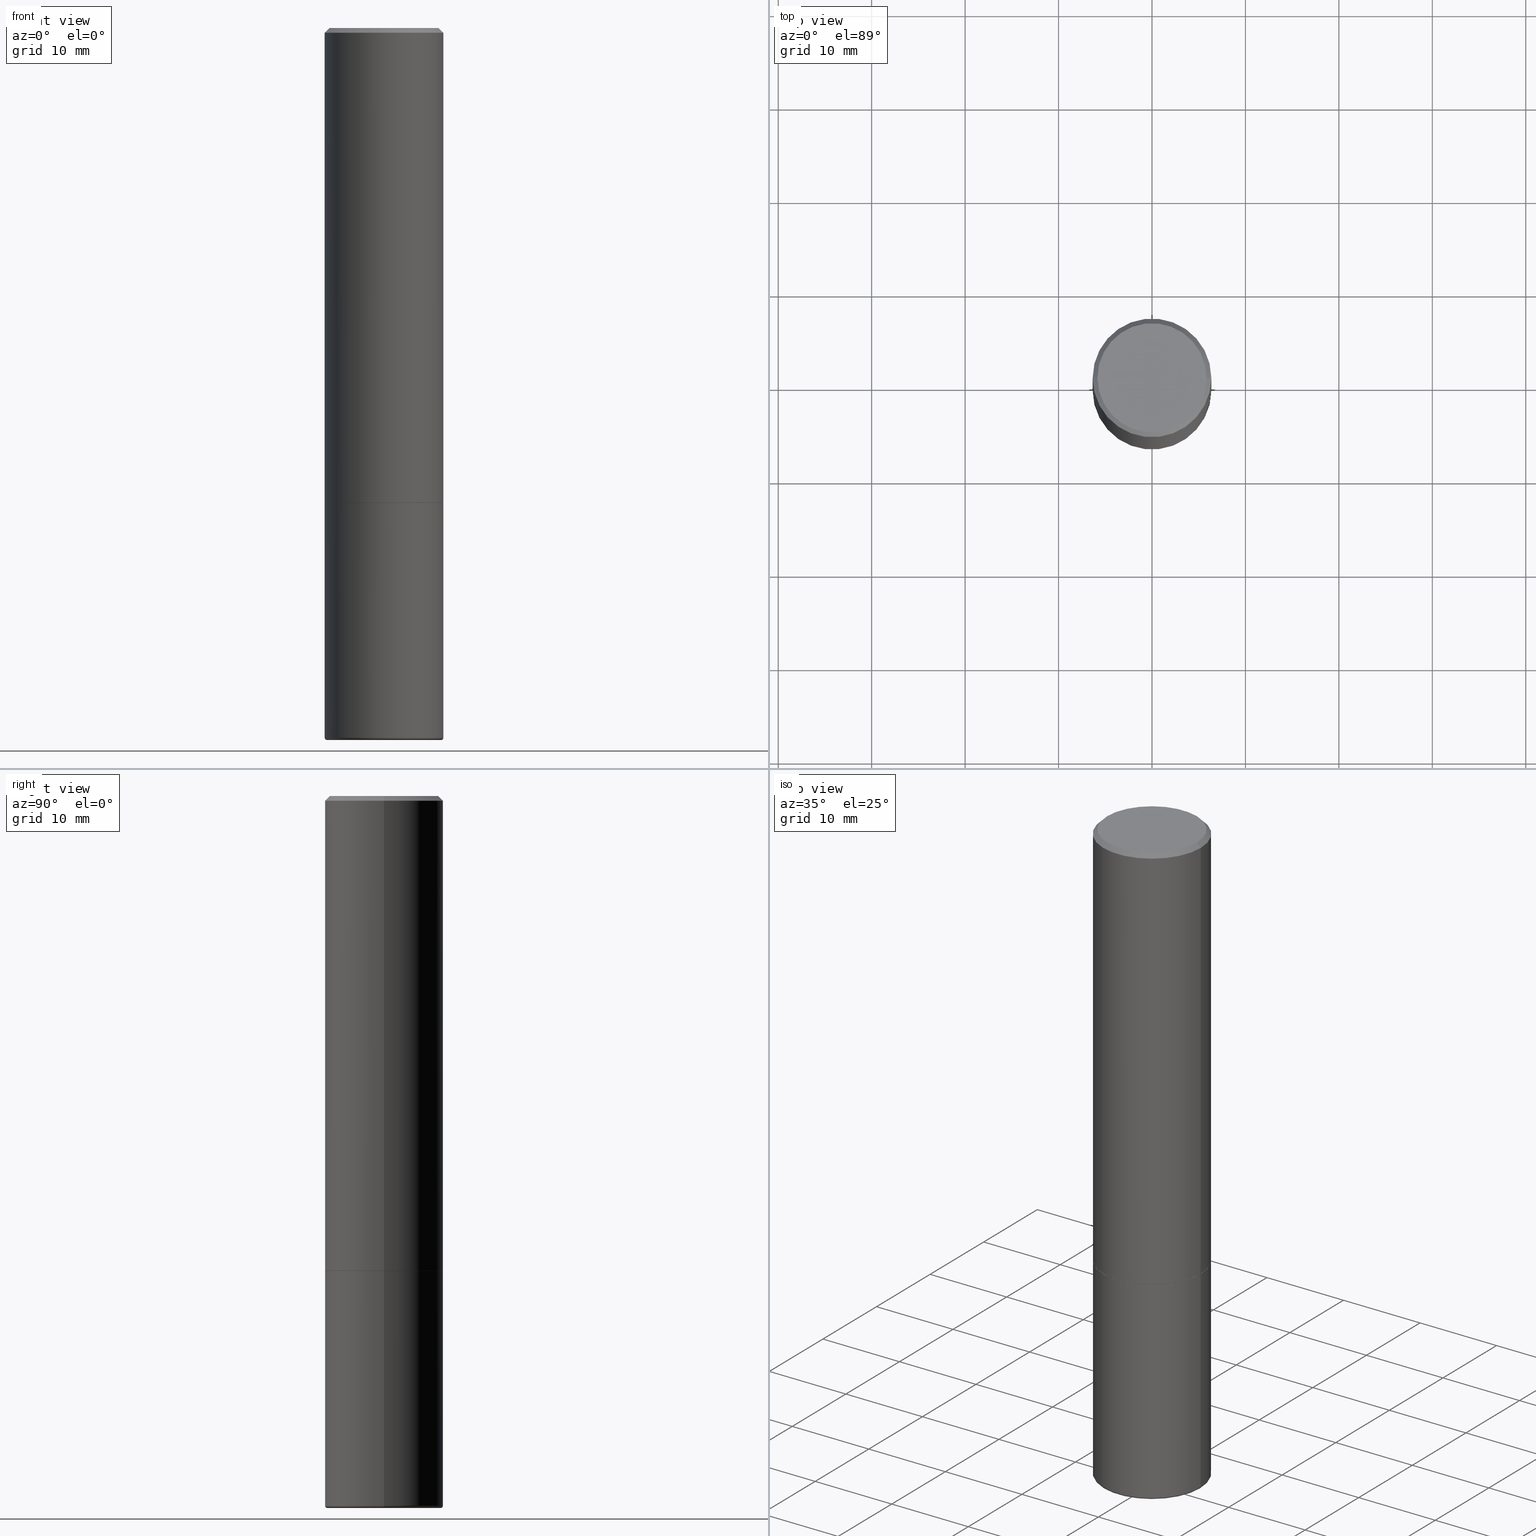
[diagram: canonical four-view strip — front | top / right | iso, engineering-drawing reading convention]
A machine part, canonical four-view strip (front | top / right | iso — engineering-drawing reading convention). The complete STEP part file that produces these views, byte-faithful:
ISO-10303-21;
HEADER;
FILE_DESCRIPTION (( 'STEP AP203' ),
    '1' );
FILE_NAME ('38832.STEP',
    '2024-03-03T15:42:06',
    ( '' ),
    ( '' ),
    'SwSTEP 2.0',
    'SolidWorks 2023',
    '' );
FILE_SCHEMA (( 'CONFIG_CONTROL_DESIGN' ));
ENDSEC;

DATA;
#1 = CC_DESIGN_SECURITY_CLASSIFICATION ( #21, ( #364 ) ) ;
#2 = PERSON_AND_ORGANIZATION_ROLE ( 'design_supplier' ) ;
#3 = ADVANCED_FACE ( 'NONE', ( #279 ), #108, .T. ) ;
#4 = DIRECTION ( 'NONE',  ( -2.445468806185136597E-29, 3.491481338843145583E-15, 1.000000000000000000 ) ) ;
#5 = AXIS2_PLACEMENT_3D ( 'NONE', #407, #240, #339 ) ;
#6 = DIRECTION ( 'NONE',  ( -1.000000000000000000, 7.105427357600978193E-15, 0.000000000000000000 ) ) ;
#7 = VERTEX_POINT ( 'NONE', #384 ) ;
#8 = EDGE_CURVE ( 'NONE', #309, #99, #255, .T. ) ;
#9 = PRODUCT_DEFINITION_SHAPE ( 'NONE', 'NONE',  #19 ) ;
#10 = ORIENTED_EDGE ( 'NONE', *, *, #8, .F. ) ;
#11 = CARTESIAN_POINT ( 'NONE',  ( 7.311951730493558245E-29, -1.043952920314100628E-14, -2.990000000000000213 ) ) ;
#12 = EDGE_LOOP ( 'NONE', ( #334, #292, #47, #294 ) ) ;
#13 = FACE_OUTER_BOUND ( 'NONE', #338, .T. ) ;
#14 = CARTESIAN_POINT ( 'NONE',  ( 4.890937612370287172E-31, -6.982962677686310098E-17, -0.02000000000000005593 ) ) ;
#15 = CARTESIAN_POINT ( 'NONE',  ( 0.000000000000000000, 0.000000000000000000, 0.000000000000000000 ) ) ;
#16 = EDGE_LOOP ( 'NONE', ( #174, #130, #345, #147 ) ) ;
#17 = CARTESIAN_POINT ( 'NONE',  ( 0.2499999999999998890, -1.218526987256257138E-14, -2.990000000000000213 ) ) ;
#18 = FACE_OUTER_BOUND ( 'NONE', #416, .T. ) ;
#19 = PRODUCT_DEFINITION ( 'UNKNOWN', '', #364, #282 ) ;
#20 = CARTESIAN_POINT ( 'NONE',  ( -1.148236555768741665E-45, 1.639377487418492057E-31, 4.695363739110452099E-17 ) ) ;
#21 = SECURITY_CLASSIFICATION ( '', '', #275 ) ;
#22 = LENGTH_MEASURE_WITH_UNIT ( LENGTH_MEASURE( 0.02539999999999999897 ), #269 );
#23 =( NAMED_UNIT ( * ) SI_UNIT ( $, .STERADIAN. ) SOLID_ANGLE_UNIT ( ) );
#24 = EDGE_CURVE ( 'NONE', #305, #231, #298, .T. ) ;
#25 = CARTESIAN_POINT ( 'NONE',  ( 0.2489999999999999991, -8.721720384430172617E-15, -2.000000000000000444 ) ) ;
#26 = ORIENTED_EDGE ( 'NONE', *, *, #357, .T. ) ;
#27 = ORIENTED_EDGE ( 'NONE', *, *, #408, .T. ) ;
#28 = ORGANIZATION ( 'UNSPECIFIED', 'UNSPECIFIED', '' ) ;
#29 = MANIFOLD_SOLID_BREP ( 'Body-Move/Copy2[2]', #319 ) ;
#30 = PERSON_AND_ORGANIZATION ( #43, #28 ) ;
#31 = ADVANCED_FACE ( 'NONE', ( #121 ), #80, .T. ) ;
#32 = PERSON_AND_ORGANIZATION ( #43, #28 ) ;
#33 = CARTESIAN_POINT ( 'NONE',  ( 0.000000000000000000, 0.000000000000000000, 0.000000000000000000 ) ) ;
#34 = EDGE_CURVE ( 'NONE', #206, #373, #133, .T. ) ;
#35 = DIRECTION ( 'NONE',  ( -0.7071067811865467956, 2.468850131082249172E-15, -0.7071067811865482389 ) ) ;
#36 = EDGE_CURVE ( 'NONE', #55, #373, #278, .T. ) ;
#37 = ORIENTED_EDGE ( 'NONE', *, *, #286, .T. ) ;
#38 = AXIS2_PLACEMENT_3D ( 'NONE', #15, #136, #52 ) ;
#39 = AXIS2_PLACEMENT_3D ( 'NONE', #308, #209, #180 ) ;
#40 = DIRECTION ( 'NONE',  ( -2.445468806185136597E-29, 3.491481338843145583E-15, 1.000000000000000000 ) ) ;
#41 = ADVANCED_FACE ( 'NONE', ( #18 ), #289, .T. ) ;
#42 = CARTESIAN_POINT ( 'NONE',  ( -0.2500000000000000000, 1.675911042644703577E-15, -0.02000000000000005593 ) ) ;
#43 = PERSON ( 'UNSPECIFIED', 'UNSPECIFIED', 'UNSPECIFIED', ('UNSPECIFIED'), ('UNSPECIFIED'), ('UNSPECIFIED') ) ;
#44 = ORIENTED_EDGE ( 'NONE', *, *, #286, .F. ) ;
#45 = CC_DESIGN_DATE_AND_TIME_ASSIGNMENT ( #221, #354, ( #19 ) ) ;
#46 = DIRECTION ( 'NONE',  ( -2.445468806185136597E-29, 3.491481338843145583E-15, 1.000000000000000000 ) ) ;
#47 = ORIENTED_EDGE ( 'NONE', *, *, #277, .F. ) ;
#48 = ADVANCED_FACE ( 'NONE', ( #271 ), #378, .F. ) ;
#49 = CARTESIAN_POINT ( 'NONE',  ( -0.2500000000000002220, -1.748293572161901516E-15, -1.999000000000000110 ) ) ;
#50 = DIRECTION ( 'NONE',  ( -2.445468806185136597E-29, 3.491481338843145583E-15, 1.000000000000000000 ) ) ;
#51 = ADVANCED_FACE ( 'NONE', ( #58 ), #181, .T. ) ;
#52 = DIRECTION ( 'NONE',  ( 1.000000000000000000, -6.982962677686267499E-15, 4.876176775795936353E-29 ) ) ;
#53 = ORIENTED_EDGE ( 'NONE', *, *, #218, .F. ) ;
#54 = DIRECTION ( 'NONE',  ( -2.445468806185136597E-29, 3.491481338843145583E-15, 1.000000000000000000 ) ) ;
#55 = VERTEX_POINT ( 'NONE', #155 ) ;
#56 = VECTOR ( 'NONE', #35, 39.37007874015748143 ) ;
#57 = ORIENTED_EDGE ( 'NONE', *, *, #137, .F. ) ;
#58 = FACE_OUTER_BOUND ( 'NONE', #243, .T. ) ;
#59 = ORIENTED_EDGE ( 'NONE', *, *, #36, .T. ) ;
#60 = DIRECTION ( 'NONE',  ( -2.445468806185136597E-29, 3.491481338843145583E-15, 1.000000000000000000 ) ) ;
#61 = DIRECTION ( 'NONE',  ( 1.000000000000000000, -6.982962677686267499E-15, 4.876176775795936353E-29 ) ) ;
#62 = VECTOR ( 'NONE', #86, 39.37007874015748143 ) ;
#63 = CALENDAR_DATE ( 2024, 3, 3 ) ;
#64 = DATE_AND_TIME ( #148, #256 ) ;
#65 = VECTOR ( 'NONE', #350, 39.37007874015748143 ) ;
#66 = DIRECTION ( 'NONE',  ( -2.445468806185136597E-29, 3.491481338843145583E-15, 1.000000000000000000 ) ) ;
#67 = ORIENTED_EDGE ( 'NONE', *, *, #353, .T. ) ;
#68 = CARTESIAN_POINT ( 'NONE',  ( 4.890937612370273754E-29, -6.982962677686291954E-15, -2.000000000000000444 ) ) ;
#69 = DIRECTION ( 'NONE',  ( -2.445468806185136597E-29, 3.491481338843145583E-15, 1.000000000000000000 ) ) ;
#70 = ORIENTED_EDGE ( 'NONE', *, *, #73, .T. ) ;
#71 = AXIS2_PLACEMENT_3D ( 'NONE', #250, #318, #392 ) ;
#72 = LINE ( 'NONE', #297, #263 ) ;
#73 = EDGE_CURVE ( 'NONE', #309, #115, #285, .T. ) ;
#74 = FACE_OUTER_BOUND ( 'NONE', #182, .T. ) ;
#75 = DIRECTION ( 'NONE',  ( 1.000000000000000000, -6.982962677686266711E-15, 0.000000000000000000 ) ) ;
#76 = ORIENTED_EDGE ( 'NONE', *, *, #146, .F. ) ;
#77 = CIRCLE ( 'NONE', #327, 0.009999999999999790307 ) ;
#78 = CARTESIAN_POINT ( 'NONE',  ( 7.336406418555408669E-29, -1.047444401652943478E-14, -2.999999999999999556 ) ) ;
#79 = CARTESIAN_POINT ( 'NONE',  ( 4.890937612370287172E-31, -6.982962677686310098E-17, -0.02000000000000005593 ) ) ;
#80 = CYLINDRICAL_SURFACE ( 'NONE', #316, 0.2500000000000000000 ) ;
#81 = ADVANCED_FACE ( 'NONE', ( #126 ), #272, .T. ) ;
#82 = EDGE_LOOP ( 'NONE', ( #106, #26, #329, #169 ) ) ;
#83 = CIRCLE ( 'NONE', #380, 0.2500000000000000000 ) ;
#84 = PERSON_AND_ORGANIZATION_ROLE ( 'classification_officer' ) ;
#85 = ADVANCED_BREP_SHAPE_REPRESENTATION ( '38832', ( #291, #29, #382 ), #230 ) ;
#86 = DIRECTION ( 'NONE',  ( 0.7071067811865467956, -7.319954787623254468E-15, -0.7071067811865482389 ) ) ;
#87 = CARTESIAN_POINT ( 'NONE',  ( 4.890937612370273754E-29, -6.982962677686291954E-15, -2.000000000000000444 ) ) ;
#88 = APPROVAL_ROLE ( '' ) ;
#89 = CARTESIAN_POINT ( 'NONE',  ( 0.000000000000000000, 0.000000000000000000, 0.000000000000000000 ) ) ;
#90 = AXIS2_PLACEMENT_3D ( 'NONE', #68, #46, #195 ) ;
#91 = CIRCLE ( 'NONE', #71, 0.2500000000000000000 ) ;
#92 = APPROVAL_ROLE ( '' ) ;
#93 = APPLICATION_PROTOCOL_DEFINITION ( 'international standard', 'config_control_design', 1994, #312 ) ;
#94 = CARTESIAN_POINT ( 'NONE',  ( 7.311951730493558245E-29, -1.043952920314100628E-14, -2.990000000000000213 ) ) ;
#95 = VECTOR ( 'NONE', #97, 39.37007874015748143 ) ;
#96 = CARTESIAN_POINT ( 'NONE',  ( -1.148236555768741665E-45, 1.639377487418492057E-31, 4.695363739110452099E-17 ) ) ;
#97 = DIRECTION ( 'NONE',  ( -2.445468806185136877E-29, 3.491481338843145188E-15, 1.000000000000000000 ) ) ;
#98 = CARTESIAN_POINT ( 'NONE',  ( -0.2500000000000000000, 1.675911042644703577E-15, -0.02000000000000005593 ) ) ;
#99 = VERTEX_POINT ( 'NONE', #393 ) ;
#100 = CIRCLE ( 'NONE', #164, 0.2500000000000002220 ) ;
#101 = CARTESIAN_POINT ( 'NONE',  ( 4.890937612370287172E-31, -6.982962677686310098E-17, -0.02000000000000005593 ) ) ;
#102 = ORIENTED_EDGE ( 'NONE', *, *, #146, .T. ) ;
#103 = DIRECTION ( 'NONE',  ( -2.445468806185136597E-29, 3.491481338843145583E-15, 1.000000000000000000 ) ) ;
#104 = VERTEX_POINT ( 'NONE', #260 ) ;
#105 = DIRECTION ( 'NONE',  ( -1.000000000000000000, 6.982962677686265922E-15, -4.876176775795935793E-29 ) ) ;
#106 = ORIENTED_EDGE ( 'NONE', *, *, #228, .F. ) ;
#107 = ADVANCED_FACE ( 'NONE', ( #132 ), #244, .T. ) ;
#108 = CONICAL_SURFACE ( 'NONE', #175, 0.2500000000000000000, 0.7853981633974472798 ) ;
#109 = PLANE ( 'NONE',  #307 ) ;
#110 = AXIS2_PLACEMENT_3D ( 'NONE', #20, #141, #116 ) ;
#111 = FACE_OUTER_BOUND ( 'NONE', #196, .T. ) ;
#112 = DIRECTION ( 'NONE',  ( -1.000000000000000000, 6.982962677686266711E-15, 0.000000000000000000 ) ) ;
#113 = DIRECTION ( 'NONE',  ( -2.445468806185136597E-29, 3.491481338843145583E-15, 1.000000000000000000 ) ) ;
#114 = EDGE_CURVE ( 'NONE', #231, #248, #131, .T. ) ;
#115 = VERTEX_POINT ( 'NONE', #170 ) ;
#116 = DIRECTION ( 'NONE',  ( 1.000000000000000000, -6.982962677686267499E-15, 4.875813741439101456E-29 ) ) ;
#117 = AXIS2_PLACEMENT_3D ( 'NONE', #341, #50, #311 ) ;
#118 = EDGE_CURVE ( 'NONE', #115, #373, #72, .T. ) ;
#119 = DIRECTION ( 'NONE',  ( -1.000000000000000000, 6.982962677686266711E-15, 0.000000000000000000 ) ) ;
#120 = COORDINATED_UNIVERSAL_TIME_OFFSET ( 5, 0, .BEHIND. ) ;
#121 = FACE_OUTER_BOUND ( 'NONE', #331, .T. ) ;
#122 = CC_DESIGN_PERSON_AND_ORGANIZATION_ASSIGNMENT ( #154, #2, ( #364 ) ) ;
#123 = APPROVAL_DATE_TIME ( #64, #247 ) ;
#124 = AXIS2_PLACEMENT_3D ( 'NONE', #287, #4, #326 ) ;
#125 = VECTOR ( 'NONE', #314, 39.37007874015748143 ) ;
#126 = FACE_OUTER_BOUND ( 'NONE', #82, .T. ) ;
#127 = AXIS2_PLACEMENT_3D ( 'NONE', #87, #216, #347 ) ;
#128 = COORDINATED_UNIVERSAL_TIME_OFFSET ( 5, 0, .BEHIND. ) ;
#129 = CARTESIAN_POINT ( 'NONE',  ( -0.2499999999999998890, -8.663172363740755817E-15, -2.990000000000000213 ) ) ;
#130 = ORIENTED_EDGE ( 'NONE', *, *, #257, .T. ) ;
#131 = LINE ( 'NONE', #333, #95 ) ;
#132 = FACE_OUTER_BOUND ( 'NONE', #399, .T. ) ;
#133 = CIRCLE ( 'NONE', #185, 0.2500000000000000000 ) ;
#134 = DIRECTION ( 'NONE',  ( 1.000000000000000000, -6.982962677686269077E-15, 4.883557194083114022E-29 ) ) ;
#135 = FACE_OUTER_BOUND ( 'NONE', #325, .T. ) ;
#136 = DIRECTION ( 'NONE',  ( -2.445468806185136597E-29, 3.491481338843145583E-15, 1.000000000000000000 ) ) ;
#137 = EDGE_CURVE ( 'NONE', #7, #305, #77, .T. ) ;
#138 = ORIENTED_EDGE ( 'NONE', *, *, #322, .F. ) ;
#139 = DIRECTION ( 'NONE',  ( 1.000000000000000000, -6.982962677686268288E-15, 0.000000000000000000 ) ) ;
#140 = AXIS2_PLACEMENT_3D ( 'NONE', #96, #103, #330 ) ;
#141 = DIRECTION ( 'NONE',  ( -2.445468806185136597E-29, 3.491481338843145583E-15, 1.000000000000000000 ) ) ;
#142 = APPROVAL_PERSON_ORGANIZATION ( #217, #247, #92 ) ;
#143 = ORIENTED_EDGE ( 'NONE', *, *, #187, .F. ) ;
#144 = CYLINDRICAL_SURFACE ( 'NONE', #238, 0.2500000000000000000 ) ;
#145 = CARTESIAN_POINT ( 'NONE',  ( 4.888492143564088712E-29, -6.979471196347448158E-15, -1.999000000000000110 ) ) ;
#146 = EDGE_CURVE ( 'NONE', #55, #370, #172, .T. ) ;
#147 = ORIENTED_EDGE ( 'NONE', *, *, #34, .F. ) ;
#148 = CALENDAR_DATE ( 2024, 3, 3 ) ;
#149 = AXIS2_PLACEMENT_3D ( 'NONE', #288, #202, #6 ) ;
#150 = CIRCLE ( 'NONE', #110, 0.2299999999999999267 ) ;
#151 = CARTESIAN_POINT ( 'NONE',  ( 0.2489999999999999991, -8.721720384430172617E-15, -2.000000000000000444 ) ) ;
#152 = EDGE_CURVE ( 'NONE', #370, #206, #262, .T. ) ;
#153 = ADVANCED_FACE ( 'NONE', ( #13 ), #254, .F. ) ;
#154 = PERSON_AND_ORGANIZATION ( #43, #28 ) ;
#155 = CARTESIAN_POINT ( 'NONE',  ( 0.2299999999999999267, -1.681434332853598617E-15, 4.695363739111602110E-17 ) ) ;
#156 = AXIS2_PLACEMENT_3D ( 'NONE', #369, #193, #398 ) ;
#157 = CC_DESIGN_APPROVAL ( #247, ( #19 ) ) ;
#158 = PRODUCT_RELATED_PRODUCT_CATEGORY ( 'detail', '', ( #267 ) ) ;
#159 = DATE_AND_TIME ( #396, #212 ) ;
#160 = UNCERTAINTY_MEASURE_WITH_UNIT (LENGTH_MEASURE( 1.000000000000000082E-05 ), #348, 'distance_accuracy_value', 'NONE');
#161 = LINE ( 'NONE', #401, #211 ) ;
#162 = DIRECTION ( 'NONE',  ( 1.000000000000000000, -6.982962677686269077E-15, 4.883557194083114022E-29 ) ) ;
#163 = AXIS2_PLACEMENT_3D ( 'NONE', #79, #208, #112 ) ;
#164 = AXIS2_PLACEMENT_3D ( 'NONE', #397, #40, #165 ) ;
#165 = DIRECTION ( 'NONE',  ( 1.000000000000000000, -6.982962677686268288E-15, 0.000000000000000000 ) ) ;
#166 = DIRECTION ( 'NONE',  ( 1.000000000000000000, -6.982962677686266711E-15, 0.000000000000000000 ) ) ;
#167 = VERTEX_POINT ( 'NONE', #198 ) ;
#168 = DIRECTION ( 'NONE',  ( 1.000000000000000000, -6.982962677686266711E-15, 0.000000000000000000 ) ) ;
#169 = ORIENTED_EDGE ( 'NONE', *, *, #408, .F. ) ;
#170 = CARTESIAN_POINT ( 'NONE',  ( 0.2500000000000002220, -8.725211865769017202E-15, -1.999000000000000110 ) ) ;
#171 = ORIENTED_EDGE ( 'NONE', *, *, #367, .T. ) ;
#172 = CIRCLE ( 'NONE', #140, 0.2299999999999999267 ) ;
#173 = CC_DESIGN_PERSON_AND_ORGANIZATION_ASSIGNMENT ( #32, #415, ( #364 ) ) ;
#174 = ORIENTED_EDGE ( 'NONE', *, *, #390, .F. ) ;
#175 = AXIS2_PLACEMENT_3D ( 'NONE', #381, #413, #119 ) ;
#176 = CC_DESIGN_APPROVAL ( #214, ( #21 ) ) ;
#177 = PLANE ( 'NONE',  #5 ) ;
#178 = LOCAL_TIME ( 10, 42, 6.000000000000000000, #120 ) ;
#179 = ORIENTED_EDGE ( 'NONE', *, *, #322, .T. ) ;
#180 = DIRECTION ( 'NONE',  ( 1.000000000000000000, -6.982962677686266711E-15, 0.000000000000000000 ) ) ;
#181 = CYLINDRICAL_SURFACE ( 'NONE', #38, 0.2500000000000001110 ) ;
#182 = EDGE_LOOP ( 'NONE', ( #203, #340, #302, #57 ) ) ;
#183 = CYLINDRICAL_SURFACE ( 'NONE', #352, 0.2500000000000001110 ) ;
#184 = CARTESIAN_POINT ( 'NONE',  ( 7.311951730493558245E-29, -1.043952920314100628E-14, -2.990000000000000213 ) ) ;
#185 = AXIS2_PLACEMENT_3D ( 'NONE', #14, #69, #166 ) ;
#186 = LOCAL_TIME ( 10, 42, 6.000000000000000000, #188 ) ;
#187 = EDGE_CURVE ( 'NONE', #7, #167, #361, .T. ) ;
#188 = COORDINATED_UNIVERSAL_TIME_OFFSET ( 5, 0, .BEHIND. ) ;
#189 = LINE ( 'NONE', #418, #125 ) ;
#190 = CALENDAR_DATE ( 2024, 3, 3 ) ;
#191 = AXIS2_PLACEMENT_3D ( 'NONE', #232, #359, #235 ) ;
#192 = PERSON_AND_ORGANIZATION ( #43, #28 ) ;
#193 = DIRECTION ( 'NONE',  ( -2.445468806185136597E-29, 3.491481338843145583E-15, 1.000000000000000000 ) ) ;
#194 = DIRECTION ( 'NONE',  ( 1.000000000000000000, -6.982962677686266711E-15, 4.876176775795935793E-29 ) ) ;
#195 = DIRECTION ( 'NONE',  ( 1.000000000000000000, -6.982962677686266711E-15, 0.000000000000000000 ) ) ;
#196 = EDGE_LOOP ( 'NONE', ( #171, #102 ) ) ;
#197 = APPROVAL_DATE_TIME ( #159, #214 ) ;
#198 = CARTESIAN_POINT ( 'NONE',  ( -0.2400000000000000466, -8.716156907222976683E-15, -2.999999999999999556 ) ) ;
#199 = ORIENTED_EDGE ( 'NONE', *, *, #357, .F. ) ;
#200 = CC_DESIGN_APPROVAL ( #376, ( #364 ) ) ;
#201 = DATE_TIME_ROLE ( 'classification_date' ) ;
#202 = DIRECTION ( 'NONE',  ( 7.105427357601001859E-15, 1.000000000000000000, -3.491481338843145583E-15 ) ) ;
#203 = ORIENTED_EDGE ( 'NONE', *, *, #187, .T. ) ;
#204 = DIRECTION ( 'NONE',  ( -2.445468806185136597E-29, 3.491481338843145583E-15, 1.000000000000000000 ) ) ;
#205 = EDGE_CURVE ( 'NONE', #305, #104, #161, .T. ) ;
#206 = VERTEX_POINT ( 'NONE', #98 ) ;
#207 = CIRCLE ( 'NONE', #39, 0.2500000000000000000 ) ;
#208 = DIRECTION ( 'NONE',  ( 2.445468806185136597E-29, -3.491481338843145583E-15, -1.000000000000000000 ) ) ;
#209 = DIRECTION ( 'NONE',  ( -2.445468806185136597E-29, 3.491481338843145583E-15, 1.000000000000000000 ) ) ;
#210 = DIRECTION ( 'NONE',  ( -2.445468806185136597E-29, 3.491481338843145583E-15, 1.000000000000000000 ) ) ;
#211 = VECTOR ( 'NONE', #362, 39.37007874015748143 ) ;
#212 = LOCAL_TIME ( 10, 42, 6.000000000000000000, #128 ) ;
#213 = ORIENTED_EDGE ( 'NONE', *, *, #205, .T. ) ;
#214 = APPROVAL ( #321, 'UNSPECIFIED' ) ;
#215 = PERSON_AND_ORGANIZATION_ROLE ( 'design_owner' ) ;
#216 = DIRECTION ( 'NONE',  ( -2.445468806185136597E-29, 3.491481338843145583E-15, 1.000000000000000000 ) ) ;
#217 = PERSON_AND_ORGANIZATION ( #43, #28 ) ;
#218 = EDGE_CURVE ( 'NONE', #373, #206, #83, .T. ) ;
#219 = COORDINATED_UNIVERSAL_TIME_OFFSET ( 5, 0, .BEHIND. ) ;
#220 = ADVANCED_FACE ( 'NONE', ( #295 ), #306, .T. ) ;
#221 = DATE_AND_TIME ( #63, #299 ) ;
#222 = DIRECTION ( 'NONE',  ( -2.445468806185136597E-29, 3.491481338843145583E-15, 1.000000000000000000 ) ) ;
#223 = EDGE_CURVE ( 'NONE', #99, #342, #366, .T. ) ;
#224 = ADVANCED_FACE ( 'NONE', ( #74 ), #284, .T. ) ;
#225 = DIRECTION ( 'NONE',  ( 1.000000000000000000, -6.982962677686284854E-15, 0.000000000000000000 ) ) ;
#226 = APPROVAL_ROLE ( '' ) ;
#227 = DIRECTION ( 'NONE',  ( -2.445468806185136597E-29, 3.491481338843145583E-15, 1.000000000000000000 ) ) ;
#228 = EDGE_CURVE ( 'NONE', #167, #231, #336, .T. ) ;
#229 = AXIS2_PLACEMENT_3D ( 'NONE', #184, #60, #315 ) ;
#230 =( GEOMETRIC_REPRESENTATION_CONTEXT ( 3 ) GLOBAL_UNCERTAINTY_ASSIGNED_CONTEXT ( ( #160 ) ) GLOBAL_UNIT_ASSIGNED_CONTEXT ( ( #348, #283, #23 ) ) REPRESENTATION_CONTEXT ( 'NONE', 'WORKASPACE' ) );
#231 = VERTEX_POINT ( 'NONE', #129 ) ;
#232 = CARTESIAN_POINT ( 'NONE',  ( 4.890937612370273754E-29, -6.982962677686291954E-15, -2.000000000000000444 ) ) ;
#233 = CC_DESIGN_DATE_AND_TIME_ASSIGNMENT ( #386, #201, ( #21 ) ) ;
#234 = ORIENTED_EDGE ( 'NONE', *, *, #152, .T. ) ;
#235 = DIRECTION ( 'NONE',  ( 1.000000000000000000, -6.982962677686265922E-15, 4.876176775795935793E-29 ) ) ;
#236 = ORIENTED_EDGE ( 'NONE', *, *, #223, .F. ) ;
#237 = ORIENTED_EDGE ( 'NONE', *, *, #8, .T. ) ;
#238 = AXIS2_PLACEMENT_3D ( 'NONE', #335, #266, #270 ) ;
#239 = ORIENTED_EDGE ( 'NONE', *, *, #114, .F. ) ;
#240 = DIRECTION ( 'NONE',  ( 2.438088387897960049E-29, -3.491481338843145188E-15, -1.000000000000000000 ) ) ;
#241 = CARTESIAN_POINT ( 'NONE',  ( 4.890937612370273754E-29, -6.982962677686291954E-15, -2.000000000000000444 ) ) ;
#242 = ORIENTED_EDGE ( 'NONE', *, *, #73, .F. ) ;
#243 = EDGE_LOOP ( 'NONE', ( #179, #402, #53, #365 ) ) ;
#244 = CONICAL_SURFACE ( 'NONE', #90, 0.2489999999999999991, 0.7853981633975336552 ) ;
#245 = PERSON_AND_ORGANIZATION ( #43, #28 ) ;
#246 = DIRECTION ( 'NONE',  ( -1.000000000000000000, 6.982962677686265922E-15, -4.876176775795935793E-29 ) ) ;
#247 = APPROVAL ( #387, 'UNSPECIFIED' ) ;
#248 = VERTEX_POINT ( 'NONE', #258 ) ;
#249 = CALENDAR_DATE ( 2024, 3, 3 ) ;
#250 = CARTESIAN_POINT ( 'NONE',  ( 7.311951730493558245E-29, -1.043952920314100628E-14, -2.990000000000000213 ) ) ;
#251 = PERSON_AND_ORGANIZATION ( #43, #28 ) ;
#252 = AXIS2_PLACEMENT_3D ( 'NONE', #241, #344, #246 ) ;
#253 = SHAPE_DEFINITION_REPRESENTATION ( #9, #85 ) ;
#254 = PLANE ( 'NONE',  #191 ) ;
#255 = CIRCLE ( 'NONE', #127, 0.2489999999999999991 ) ;
#256 = LOCAL_TIME ( 10, 42, 6.000000000000000000, #219 ) ;
#257 = EDGE_CURVE ( 'NONE', #342, #115, #100, .T. ) ;
#258 = CARTESIAN_POINT ( 'NONE',  ( -0.2500000000000000000, -6.934889101013398653E-15, -2.000000000000000444 ) ) ;
#259 = ORIENTED_EDGE ( 'NONE', *, *, #152, .F. ) ;
#260 = CARTESIAN_POINT ( 'NONE',  ( 0.2500000000000000000, -8.728703347107858632E-15, -2.000000000000000444 ) ) ;
#261 = ORIENTED_EDGE ( 'NONE', *, *, #223, .T. ) ;
#262 = LINE ( 'NONE', #42, #56 ) ;
#263 = VECTOR ( 'NONE', #324, 39.37007874015748143 ) ;
#264 = DIRECTION ( 'NONE',  ( -6.982962677686266711E-15, -1.000000000000000000, 3.491481338843145583E-15 ) ) ;
#265 = ADVANCED_FACE ( 'NONE', ( #135 ), #177, .T. ) ;
#266 = DIRECTION ( 'NONE',  ( -2.445468806185136597E-29, 3.491481338843145583E-15, 1.000000000000000000 ) ) ;
#267 = PRODUCT ( '38832', '38832', '', ( #313 ) ) ;
#268 = ORIENTED_EDGE ( 'NONE', *, *, #353, .F. ) ;
#269 =( LENGTH_UNIT ( ) NAMED_UNIT ( * ) SI_UNIT ( $, .METRE. ) );
#270 = DIRECTION ( 'NONE',  ( 1.000000000000000000, -6.982962677686266711E-15, 4.876176775795935793E-29 ) ) ;
#271 = FACE_OUTER_BOUND ( 'NONE', #360, .T. ) ;
#272 = TOROIDAL_SURFACE ( 'NONE', #372, 0.2399999999999999911, 0.009999999999999807654 ) ;
#273 = CIRCLE ( 'NONE', #414, 0.2500000000000000000 ) ;
#274 = CARTESIAN_POINT ( 'NONE',  ( 0.2500000000000000000, -1.784954126219746189E-15, -0.02000000000000005593 ) ) ;
#275 = SECURITY_CLASSIFICATION_LEVEL ( 'unclassified' ) ;
#276 = DIRECTION ( 'NONE',  ( 2.438088387897960049E-29, -3.491481338843145188E-15, -1.000000000000000000 ) ) ;
#277 = EDGE_CURVE ( 'NONE', #104, #248, #207, .T. ) ;
#278 = LINE ( 'NONE', #274, #62 ) ;
#279 = FACE_OUTER_BOUND ( 'NONE', #281, .T. ) ;
#280 = PERSON_AND_ORGANIZATION_ROLE ( 'creator' ) ;
#281 = EDGE_LOOP ( 'NONE', ( #76, #59, #296, #259 ) ) ;
#282 = DESIGN_CONTEXT ( 'detailed design', #323, 'design' ) ;
#283 =( NAMED_UNIT ( * ) PLANE_ANGLE_UNIT ( ) SI_UNIT ( $, .RADIAN. ) );
#284 = TOROIDAL_SURFACE ( 'NONE', #412, 0.2399999999999999911, 0.009999999999999807654 ) ;
#285 = LINE ( 'NONE', #151, #65 ) ;
#286 = EDGE_CURVE ( 'NONE', #99, #309, #337, .T. ) ;
#287 = CARTESIAN_POINT ( 'NONE',  ( 4.890937612370273754E-29, -6.982962677686291954E-15, -2.000000000000000444 ) ) ;
#288 = CARTESIAN_POINT ( 'NONE',  ( -0.2399999999999999911, -8.734226637316765899E-15, -2.990000000000000213 ) ) ;
#289 = CONICAL_SURFACE ( 'NONE', #163, 0.2500000000000000000, 0.7853981633974472798 ) ;
#290 = AXIS2_PLACEMENT_3D ( 'NONE', #145, #113, #139 ) ;
#291 = MANIFOLD_SOLID_BREP ( 'Body-Move/Copy2[1]', #400 ) ;
#292 = ORIENTED_EDGE ( 'NONE', *, *, #114, .T. ) ;
#293 = DIRECTION ( 'NONE',  ( -0.7071067811866078578, 7.493145998870571886E-15, 0.7071067811864871766 ) ) ;
#294 = ORIENTED_EDGE ( 'NONE', *, *, #205, .F. ) ;
#295 = FACE_OUTER_BOUND ( 'NONE', #368, .T. ) ;
#296 = ORIENTED_EDGE ( 'NONE', *, *, #218, .T. ) ;
#297 = CARTESIAN_POINT ( 'NONE',  ( 0.2500000000000001110, -1.745740669421567664E-15, 1.219044193948984649E-29 ) ) ;
#298 = CIRCLE ( 'NONE', #229, 0.2500000000000000000 ) ;
#299 = LOCAL_TIME ( 10, 42, 6.000000000000000000, #351 ) ;
#300 = CARTESIAN_POINT ( 'NONE',  ( 1.606081415867840870E-15, 0.2299999999999999267, -7.795638892383710465E-16 ) ) ;
#301 = ORIENTED_EDGE ( 'NONE', *, *, #257, .F. ) ;
#302 = ORIENTED_EDGE ( 'NONE', *, *, #24, .F. ) ;
#303 = CARTESIAN_POINT ( 'NONE',  ( 4.890937612370273754E-29, -6.982962677686291954E-15, -2.000000000000000444 ) ) ;
#304 = VECTOR ( 'NONE', #293, 39.37007874015748143 ) ;
#305 = VERTEX_POINT ( 'NONE', #17 ) ;
#306 = CONICAL_SURFACE ( 'NONE', #124, 0.2489999999999999991, 0.7853981633975336552 ) ;
#307 = AXIS2_PLACEMENT_3D ( 'NONE', #300, #276, #105 ) ;
#308 = CARTESIAN_POINT ( 'NONE',  ( 4.890937612370273754E-29, -6.982962677686291954E-15, -2.000000000000000444 ) ) ;
#309 = VERTEX_POINT ( 'NONE', #25 ) ;
#310 = CC_DESIGN_PERSON_AND_ORGANIZATION_ASSIGNMENT ( #383, #84, ( #21 ) ) ;
#311 = DIRECTION ( 'NONE',  ( 1.000000000000000000, -6.982962677686266711E-15, 0.000000000000000000 ) ) ;
#312 = APPLICATION_CONTEXT ( 'configuration controlled 3d designs of mechanical parts and assemblies' ) ;
#313 = MECHANICAL_CONTEXT ( 'NONE', #312, 'mechanical' ) ;
#314 = DIRECTION ( 'NONE',  ( -2.445468806185136877E-29, 3.491481338843145188E-15, 1.000000000000000000 ) ) ;
#315 = DIRECTION ( 'NONE',  ( 1.000000000000000000, -6.982962677686262766E-15, 0.000000000000000000 ) ) ;
#316 = AXIS2_PLACEMENT_3D ( 'NONE', #394, #66, #194 ) ;
#317 = DATE_AND_TIME ( #190, #186 ) ;
#318 = DIRECTION ( 'NONE',  ( -2.445468806185136597E-29, 3.491481338843145583E-15, 1.000000000000000000 ) ) ;
#319 = CLOSED_SHELL ( 'NONE', ( #220, #51, #3, #41, #379, #107, #153, #332 ) ) ;
#320 = DIRECTION ( 'NONE',  ( -2.445468806185136597E-29, 3.491481338843145583E-15, 1.000000000000000000 ) ) ;
#321 = APPROVAL_STATUS ( 'not_yet_approved' ) ;
#322 = EDGE_CURVE ( 'NONE', #115, #342, #406, .T. ) ;
#323 = APPLICATION_CONTEXT ( 'configuration controlled 3d designs of mechanical parts and assemblies' ) ;
#324 = DIRECTION ( 'NONE',  ( -2.445468806185136877E-29, 3.491481338843145188E-15, 1.000000000000000000 ) ) ;
#325 = EDGE_LOOP ( 'NONE', ( #143, #199 ) ) ;
#326 = DIRECTION ( 'NONE',  ( 1.000000000000000000, -6.982962677686266711E-15, 0.000000000000000000 ) ) ;
#327 = AXIS2_PLACEMENT_3D ( 'NONE', #403, #264, #225 ) ;
#328 = ADVANCED_FACE ( 'NONE', ( #371 ), #144, .T. ) ;
#329 = ORIENTED_EDGE ( 'NONE', *, *, #137, .T. ) ;
#330 = DIRECTION ( 'NONE',  ( 1.000000000000000000, -6.982962677686267499E-15, 4.875813741439101456E-29 ) ) ;
#331 = EDGE_LOOP ( 'NONE', ( #239, #27, #213, #268 ) ) ;
#332 = ADVANCED_FACE ( 'NONE', ( #111 ), #109, .F. ) ;
#333 = CARTESIAN_POINT ( 'NONE',  ( -0.2500000000000000000, 1.776356839400250465E-15, -1.229733772563726445E-29 ) ) ;
#334 = ORIENTED_EDGE ( 'NONE', *, *, #24, .T. ) ;
#335 = CARTESIAN_POINT ( 'NONE',  ( 0.000000000000000000, 0.000000000000000000, 0.000000000000000000 ) ) ;
#336 = CIRCLE ( 'NONE', #149, 0.009999999999999790307 ) ;
#337 = CIRCLE ( 'NONE', #117, 0.2489999999999999991 ) ;
#338 = EDGE_LOOP ( 'NONE', ( #10, #44 ) ) ;
#339 = DIRECTION ( 'NONE',  ( -1.000000000000000000, 6.982962677686265922E-15, -4.876176775795935793E-29 ) ) ;
#340 = ORIENTED_EDGE ( 'NONE', *, *, #228, .T. ) ;
#341 = CARTESIAN_POINT ( 'NONE',  ( 4.890937612370273754E-29, -6.982962677686291954E-15, -2.000000000000000444 ) ) ;
#342 = VERTEX_POINT ( 'NONE', #49 ) ;
#343 = AXIS2_PLACEMENT_3D ( 'NONE', #78, #54, #410 ) ;
#344 = DIRECTION ( 'NONE',  ( 2.438088387897960049E-29, -3.491481338843145188E-15, -1.000000000000000000 ) ) ;
#345 = ORIENTED_EDGE ( 'NONE', *, *, #118, .T. ) ;
#346 = DIRECTION ( 'NONE',  ( 0.000000000000000000, 0.000000000000000000, 1.000000000000000000 ) ) ;
#347 = DIRECTION ( 'NONE',  ( 1.000000000000000000, -6.982962677686266711E-15, 0.000000000000000000 ) ) ;
#348 =( CONVERSION_BASED_UNIT ( 'INCH', #22 ) LENGTH_UNIT ( ) NAMED_UNIT ( #411 ) );
#349 = CC_DESIGN_PERSON_AND_ORGANIZATION_ASSIGNMENT ( #251, #280, ( #19 ) ) ;
#350 = DIRECTION ( 'NONE',  ( 0.7071067811866078578, -2.468850131082888544E-15, 0.7071067811864871766 ) ) ;
#351 = COORDINATED_UNIVERSAL_TIME_OFFSET ( 5, 0, .BEHIND. ) ;
#352 = AXIS2_PLACEMENT_3D ( 'NONE', #33, #320, #61 ) ;
#353 = EDGE_CURVE ( 'NONE', #248, #104, #273, .T. ) ;
#354 = DATE_TIME_ROLE ( 'creation_date' ) ;
#355 = APPROVAL_STATUS ( 'not_yet_approved' ) ;
#356 = FACE_OUTER_BOUND ( 'NONE', #16, .T. ) ;
#357 = EDGE_CURVE ( 'NONE', #167, #7, #358, .T. ) ;
#358 = CIRCLE ( 'NONE', #343, 0.2400000000000000466 ) ;
#359 = DIRECTION ( 'NONE',  ( -2.438088387897960049E-29, 3.491481338843145188E-15, 1.000000000000000000 ) ) ;
#360 = EDGE_LOOP ( 'NONE', ( #405, #67 ) ) ;
#361 = CIRCLE ( 'NONE', #156, 0.2400000000000000466 ) ;
#362 = DIRECTION ( 'NONE',  ( -2.445468806185136877E-29, 3.491481338843145188E-15, 1.000000000000000000 ) ) ;
#363 = APPROVAL_PERSON_ORGANIZATION ( #192, #214, #226 ) ;
#364 = PRODUCT_DEFINITION_FORMATION_WITH_SPECIFIED_SOURCE ( 'ANY', '', #267, .NOT_KNOWN. ) ;
#365 = ORIENTED_EDGE ( 'NONE', *, *, #118, .F. ) ;
#366 = LINE ( 'NONE', #395, #304 ) ;
#367 = EDGE_CURVE ( 'NONE', #370, #55, #150, .T. ) ;
#368 = EDGE_LOOP ( 'NONE', ( #237, #261, #138, #242 ) ) ;
#369 = CARTESIAN_POINT ( 'NONE',  ( 7.336406418555408669E-29, -1.047444401652943478E-14, -2.999999999999999556 ) ) ;
#370 = VERTEX_POINT ( 'NONE', #377 ) ;
#371 = FACE_OUTER_BOUND ( 'NONE', #12, .T. ) ;
#372 = AXIS2_PLACEMENT_3D ( 'NONE', #94, #222, #134 ) ;
#373 = VERTEX_POINT ( 'NONE', #375 ) ;
#374 = ORIENTED_EDGE ( 'NONE', *, *, #34, .T. ) ;
#375 = CARTESIAN_POINT ( 'NONE',  ( 0.2500000000000000000, -1.784954126219746189E-15, -0.02000000000000005593 ) ) ;
#376 = APPROVAL ( #355, 'UNSPECIFIED' ) ;
#377 = CARTESIAN_POINT ( 'NONE',  ( -0.2299999999999999267, 1.640996229256272519E-15, 4.695363739109317495E-17 ) ) ;
#378 = PLANE ( 'NONE',  #252 ) ;
#379 = ADVANCED_FACE ( 'NONE', ( #356 ), #183, .T. ) ;
#380 = AXIS2_PLACEMENT_3D ( 'NONE', #101, #227, #168 ) ;
#381 = CARTESIAN_POINT ( 'NONE',  ( 4.890937612370287172E-31, -6.982962677686310098E-17, -0.02000000000000005593 ) ) ;
#382 = AXIS2_PLACEMENT_3D ( 'NONE', #89, #346, #391 ) ;
#383 = PERSON_AND_ORGANIZATION ( #43, #28 ) ;
#384 = CARTESIAN_POINT ( 'NONE',  ( 0.2400000000000000466, -1.215035505917413973E-14, -2.999999999999999556 ) ) ;
#385 = CC_DESIGN_PERSON_AND_ORGANIZATION_ASSIGNMENT ( #30, #215, ( #267 ) ) ;
#386 = DATE_AND_TIME ( #249, #178 ) ;
#387 = APPROVAL_STATUS ( 'not_yet_approved' ) ;
#388 = APPROVAL_DATE_TIME ( #317, #376 ) ;
#389 = APPROVAL_PERSON_ORGANIZATION ( #245, #376, #88 ) ;
#390 = EDGE_CURVE ( 'NONE', #342, #206, #189, .T. ) ;
#391 = DIRECTION ( 'NONE',  ( 1.000000000000000000, 0.000000000000000000, 0.000000000000000000 ) ) ;
#392 = DIRECTION ( 'NONE',  ( 1.000000000000000000, -6.982962677686262766E-15, 0.000000000000000000 ) ) ;
#393 = CARTESIAN_POINT ( 'NONE',  ( -0.2489999999999999991, -5.208412811295419307E-15, -2.000000000000000444 ) ) ;
#394 = CARTESIAN_POINT ( 'NONE',  ( 0.000000000000000000, 0.000000000000000000, 0.000000000000000000 ) ) ;
#395 = CARTESIAN_POINT ( 'NONE',  ( -0.2489999999999999991, -5.213711265643642498E-15, -2.000000000000000444 ) ) ;
#396 = CALENDAR_DATE ( 2024, 3, 3 ) ;
#397 = CARTESIAN_POINT ( 'NONE',  ( 4.888492143564088712E-29, -6.979471196347448158E-15, -1.999000000000000110 ) ) ;
#398 = DIRECTION ( 'NONE',  ( 1.000000000000000000, -6.982962677686266711E-15, 0.000000000000000000 ) ) ;
#399 = EDGE_LOOP ( 'NONE', ( #236, #37, #70, #301 ) ) ;
#400 = CLOSED_SHELL ( 'NONE', ( #328, #224, #48, #31, #81, #265 ) ) ;
#401 = CARTESIAN_POINT ( 'NONE',  ( 0.2500000000000000000, -1.745740669421566678E-15, 1.219044193948983948E-29 ) ) ;
#402 = ORIENTED_EDGE ( 'NONE', *, *, #390, .T. ) ;
#403 = CARTESIAN_POINT ( 'NONE',  ( 0.2399999999999999911, -1.211544024578571124E-14, -2.990000000000000213 ) ) ;
#404 = ORIENTED_EDGE ( 'NONE', *, *, #367, .F. ) ;
#405 = ORIENTED_EDGE ( 'NONE', *, *, #277, .T. ) ;
#406 = CIRCLE ( 'NONE', #290, 0.2500000000000002220 ) ;
#407 = CARTESIAN_POINT ( 'NONE',  ( 1.210550456377282398E-28, -3.644824032368776532E-15, -2.999999999999999556 ) ) ;
#408 = EDGE_CURVE ( 'NONE', #231, #305, #91, .T. ) ;
#409 = ORIENTED_EDGE ( 'NONE', *, *, #36, .F. ) ;
#410 = DIRECTION ( 'NONE',  ( 1.000000000000000000, -6.982962677686266711E-15, 0.000000000000000000 ) ) ;
#411 = DIMENSIONAL_EXPONENTS ( 1.000000000000000000, 0.000000000000000000, 0.000000000000000000, 0.000000000000000000, 0.000000000000000000, 0.000000000000000000, 0.000000000000000000 ) ;
#412 = AXIS2_PLACEMENT_3D ( 'NONE', #11, #204, #162 ) ;
#413 = DIRECTION ( 'NONE',  ( 2.445468806185136597E-29, -3.491481338843145583E-15, -1.000000000000000000 ) ) ;
#414 = AXIS2_PLACEMENT_3D ( 'NONE', #303, #210, #75 ) ;
#415 = PERSON_AND_ORGANIZATION_ROLE ( 'creator' ) ;
#416 = EDGE_LOOP ( 'NONE', ( #409, #404, #234, #374 ) ) ;
#417 = APPLICATION_PROTOCOL_DEFINITION ( 'international standard', 'config_control_design', 1994, #323 ) ;
#418 = CARTESIAN_POINT ( 'NONE',  ( -0.2500000000000001110, 1.776356839400251254E-15, -1.229733772563727146E-29 ) ) ;
ENDSEC;
END-ISO-10303-21;
